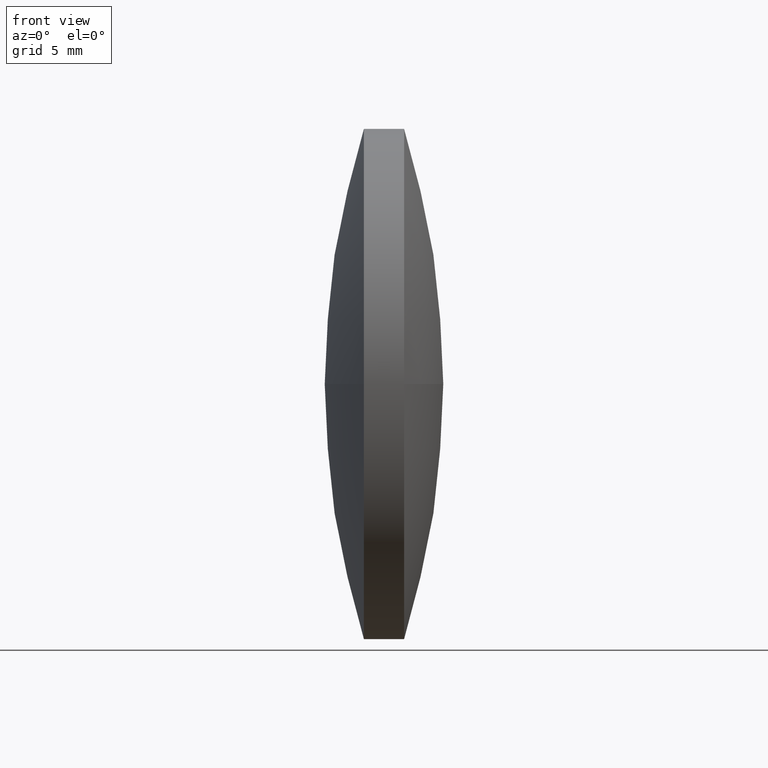
[diagram: clean part render]
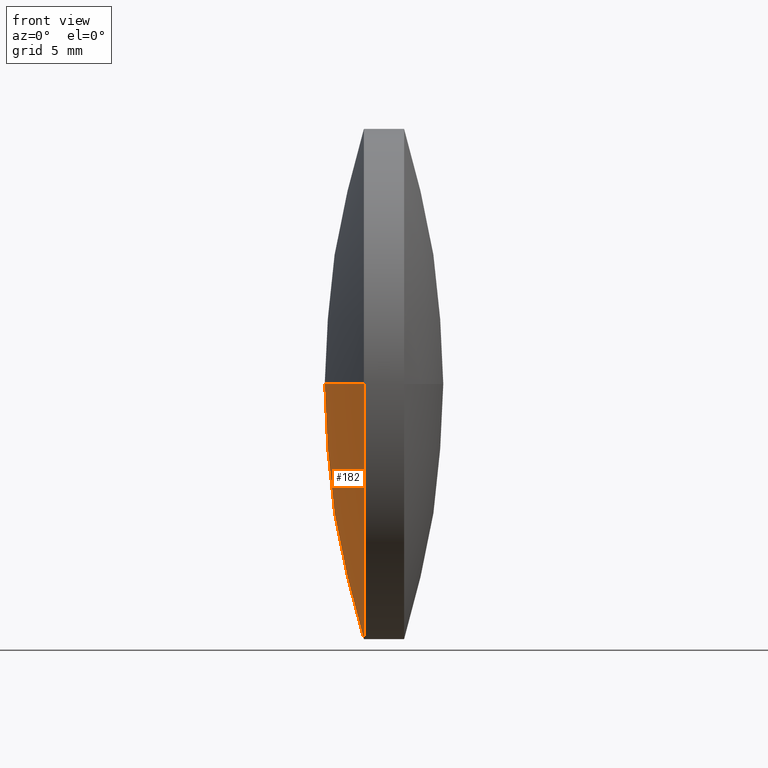
[diagram: same view with one face highlighted and labeled with its STEP entity id]
A machine part, front view. The second image highlights one B-rep face of the part: STEP entity #182.
In plain terms, the highlighted spherical surface has radius 42.3248 mm.
Its self-contained STEP definition (entity closure, byte-faithful):
#5 = DIRECTION ( 'NONE',  ( -0.0000000000000000000, 0.0000000000000000000, -1.000000000000000000 ) ) ;
#12 = AXIS2_PLACEMENT_3D ( 'NONE', #31, #218, #34 ) ;
#14 = CARTESIAN_POINT ( 'NONE',  ( 85.45852234609111500, 35.91611302318477100, -1.555301434917135700E-015 ) ) ;
#17 = DIRECTION ( 'NONE',  ( 0.0000000000000000000, 0.0000000000000000000, 1.000000000000000000 ) ) ;
#31 = CARTESIAN_POINT ( 'NONE',  ( 125.8329684218269200, 48.61611302318474500, 0.0000000000000000000 ) ) ;
#32 = SPHERICAL_SURFACE ( 'NONE', #158, 42.32476693287866000 ) ;
#34 = DIRECTION ( 'NONE',  ( 1.000000000000000000, 0.0000000000000000000, 0.0000000000000000000 ) ) ;
#41 = CARTESIAN_POINT ( 'NONE',  ( 85.45852234609111500, 48.61611302318478100, 0.0000000000000000000 ) ) ;
#55 = CIRCLE ( 'NONE', #140, 12.69999999999999600 ) ;
#61 = EDGE_LOOP ( 'NONE', ( #210, #290, #232, #212 ) ) ;
#68 = DIRECTION ( 'NONE',  ( 0.0000000000000000000, 1.000000000000000000, 1.224646799147353500E-016 ) ) ;
#74 = VERTEX_POINT ( 'NONE', #14 ) ;
#75 = CARTESIAN_POINT ( 'NONE',  ( 125.8329684218269200, 48.61611302318474500, 0.0000000000000000000 ) ) ;
#91 = CIRCLE ( 'NONE', #12, 42.32476693287864600 ) ;
#109 = EDGE_CURVE ( 'NONE', #224, #193, #55, .T. ) ;
#116 = CARTESIAN_POINT ( 'NONE',  ( 85.45852234609111500, 48.61611302318478100, -12.69999999999999600 ) ) ;
#117 = CARTESIAN_POINT ( 'NONE',  ( 85.45852234609111500, 48.61611302318478100, 0.0000000000000000000 ) ) ;
#134 = CARTESIAN_POINT ( 'NONE',  ( 85.45852234609111500, 61.31611302318476200, 0.0000000000000000000 ) ) ;
#140 = AXIS2_PLACEMENT_3D ( 'NONE', #117, #252, #168 ) ;
#146 = DIRECTION ( 'NONE',  ( -1.000000000000000000, -0.0000000000000000000, -0.0000000000000000000 ) ) ;
#158 = AXIS2_PLACEMENT_3D ( 'NONE', #75, #5, #307 ) ;
#164 = EDGE_CURVE ( 'NONE', #74, #321, #190, .T. ) ;
#166 = EDGE_CURVE ( 'NONE', #193, #74, #288, .T. ) ;
#168 = DIRECTION ( 'NONE',  ( 0.0000000000000000000, 0.0000000000000000000, 1.000000000000000000 ) ) ;
#174 = CARTESIAN_POINT ( 'NONE',  ( 125.8329684218269200, 48.61611302318474500, 0.0000000000000000000 ) ) ;
#182 = ADVANCED_FACE ( 'NONE', ( #215 ), #32, .T. ) ;
#190 = CIRCLE ( 'NONE', #253, 42.32476693287866000 ) ;
#193 = VERTEX_POINT ( 'NONE', #116 ) ;
#200 = CARTESIAN_POINT ( 'NONE',  ( 83.50820148894825900, 48.61611302318474500, 0.0000000000000000000 ) ) ;
#205 = DIRECTION ( 'NONE',  ( 0.0000000000000000000, 1.224646799147353200E-016, -1.000000000000000000 ) ) ;
#209 = EDGE_CURVE ( 'NONE', #224, #321, #91, .T. ) ;
#210 = ORIENTED_EDGE ( 'NONE', *, *, #109, .T. ) ;
#212 = ORIENTED_EDGE ( 'NONE', *, *, #209, .F. ) ;
#215 = FACE_OUTER_BOUND ( 'NONE', #61, .T. ) ;
#218 = DIRECTION ( 'NONE',  ( -0.0000000000000000000, 0.0000000000000000000, 1.000000000000000000 ) ) ;
#224 = VERTEX_POINT ( 'NONE', #134 ) ;
#232 = ORIENTED_EDGE ( 'NONE', *, *, #164, .T. ) ;
#252 = DIRECTION ( 'NONE',  ( -1.000000000000000000, -0.0000000000000000000, -0.0000000000000000000 ) ) ;
#253 = AXIS2_PLACEMENT_3D ( 'NONE', #174, #205, #68 ) ;
#288 = CIRCLE ( 'NONE', #292, 12.69999999999999600 ) ;
#290 = ORIENTED_EDGE ( 'NONE', *, *, #166, .T. ) ;
#292 = AXIS2_PLACEMENT_3D ( 'NONE', #41, #146, #17 ) ;
#307 = DIRECTION ( 'NONE',  ( 0.0000000000000000000, 1.000000000000000000, 0.0000000000000000000 ) ) ;
#321 = VERTEX_POINT ( 'NONE', #200 ) ;